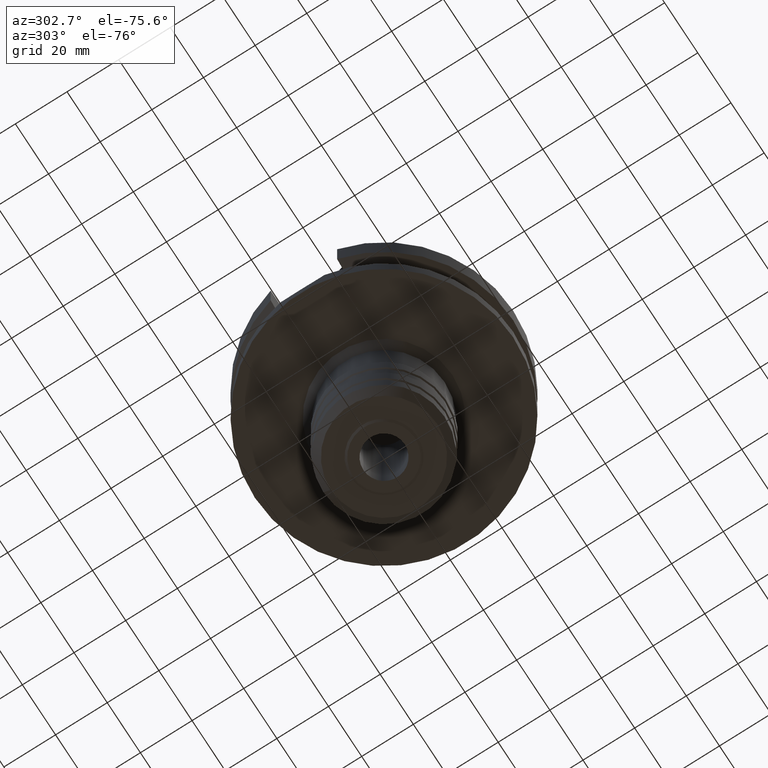
[diagram: clean part render]
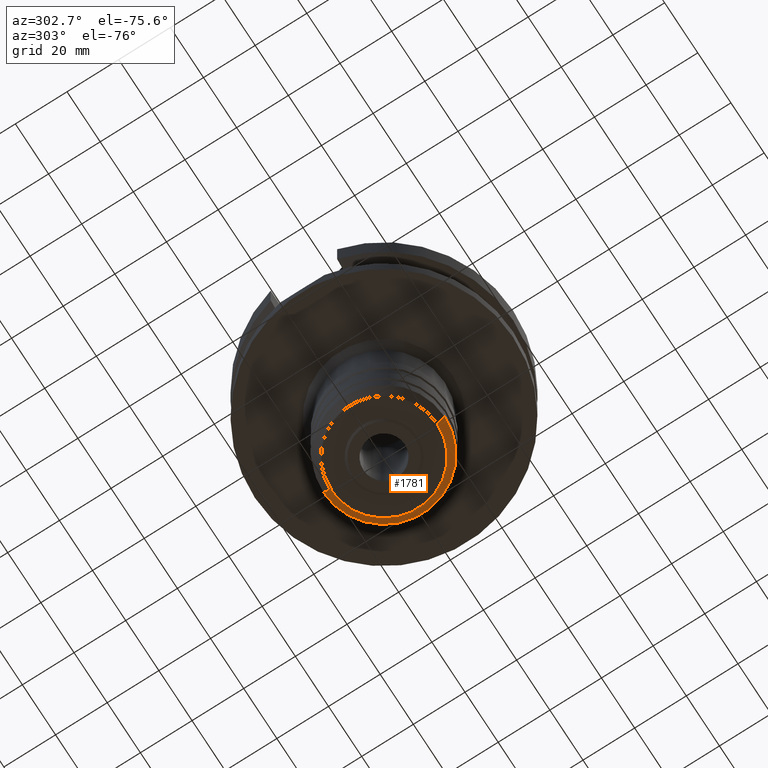
[diagram: same view with one face highlighted and labeled with its STEP entity id]
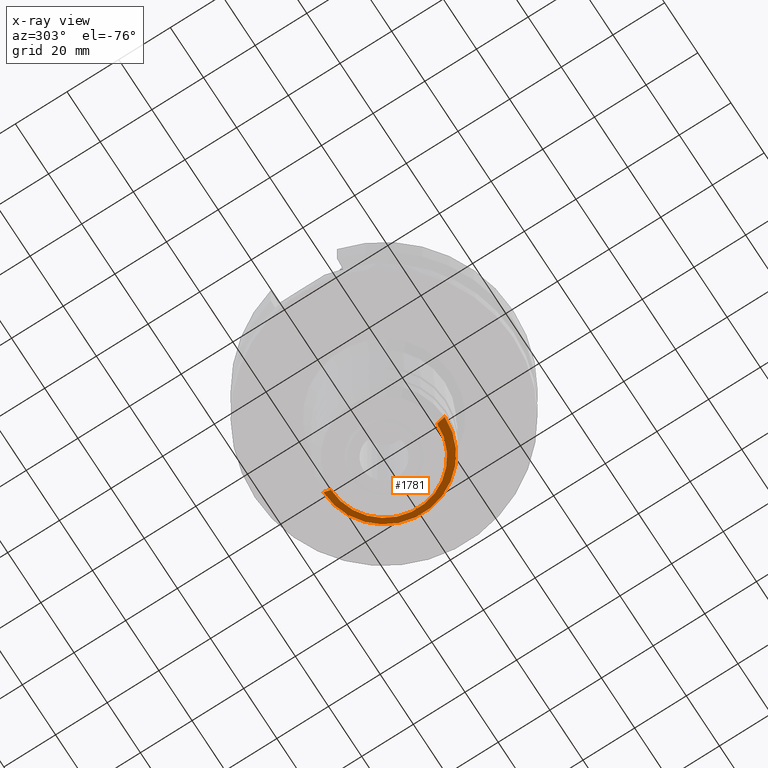
[diagram: x-ray of the same camera — body ghosted, the highlighted face saturated]
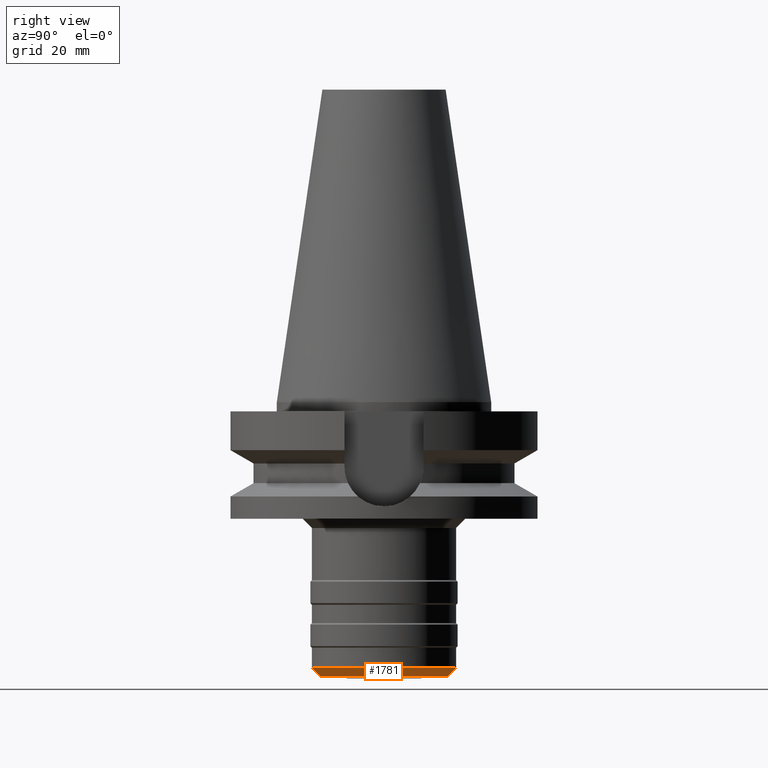
[diagram: same view with one face highlighted and labeled with its STEP entity id]
A machine part, auxiliary view. The second image highlights one B-rep face of the part: STEP entity #1781.
The next image is the same camera in x-ray: the body ghosted, the highlighted face saturated — about 0% of this face is hidden behind the body in this view.
A second angle (right view) of the same face is appended — the face is thin or edge-on in the first view.
In plain terms, the highlighted conical surface has half-angle 45 deg.
Its self-contained STEP definition (entity closure, byte-faithful):
#292=CARTESIAN_POINT('',(0.E0,0.E0,-8.95E1));
#293=DIRECTION('',(0.E0,0.E0,1.E0));
#294=DIRECTION('',(0.E0,-1.E0,0.E0));
#295=AXIS2_PLACEMENT_3D('',#292,#293,#294);
#324=DIRECTION('',(0.E0,-7.071067811866E-1,-7.071067811865E-1));
#325=VECTOR('',#324,4.142231524191E0);
#326=CARTESIAN_POINT('',(0.E0,2.35E1,-8.6571E1));
#327=LINE('',#326,#325);
#331=CARTESIAN_POINT('',(0.E0,0.E0,-8.6571E1));
#332=DIRECTION('',(0.E0,0.E0,1.E0));
#333=DIRECTION('',(0.E0,-1.E0,0.E0));
#334=AXIS2_PLACEMENT_3D('',#331,#332,#333);
#347=DIRECTION('',(0.E0,7.071067811866E-1,-7.071067811865E-1));
#348=VECTOR('',#347,4.142231524191E0);
#349=CARTESIAN_POINT('',(0.E0,-2.35E1,-8.6571E1));
#350=LINE('',#349,#348);
#1332=CARTESIAN_POINT('',(0.E0,-2.0571E1,-8.95E1));
#1333=CARTESIAN_POINT('',(0.E0,2.0571E1,-8.95E1));
#1334=VERTEX_POINT('',#1332);
#1335=VERTEX_POINT('',#1333);
#1336=CARTESIAN_POINT('',(0.E0,2.35E1,-8.6571E1));
#1337=VERTEX_POINT('',#1336);
#1338=CARTESIAN_POINT('',(0.E0,-2.35E1,-8.6571E1));
#1339=VERTEX_POINT('',#1338);
#1767=CARTESIAN_POINT('',(0.E0,0.E0,-8.80355E1));
#1768=DIRECTION('',(0.E0,0.E0,1.E0));
#1769=DIRECTION('',(0.E0,1.E0,0.E0));
#1770=AXIS2_PLACEMENT_3D('',#1767,#1768,#1769);
#1771=CONICAL_SURFACE('',#1770,2.20355E1,4.5E1);
#1773=ORIENTED_EDGE('',*,*,#1772,.T.);
#1774=ORIENTED_EDGE('',*,*,#1756,.F.);
#1776=ORIENTED_EDGE('',*,*,#1775,.F.);
#1778=ORIENTED_EDGE('',*,*,#1777,.T.);
#1779=EDGE_LOOP('',(#1773,#1774,#1776,#1778));
#1780=FACE_OUTER_BOUND('',#1779,.F.);
#296=CIRCLE('',#295,2.0571E1);
#335=CIRCLE('',#334,2.35E1);
#1756=EDGE_CURVE('',#1334,#1335,#296,.T.);
#1772=EDGE_CURVE('',#1337,#1335,#327,.T.);
#1775=EDGE_CURVE('',#1339,#1334,#350,.T.);
#1777=EDGE_CURVE('',#1339,#1337,#335,.T.);
#1781=ADVANCED_FACE('',(#1780),#1771,.T.);